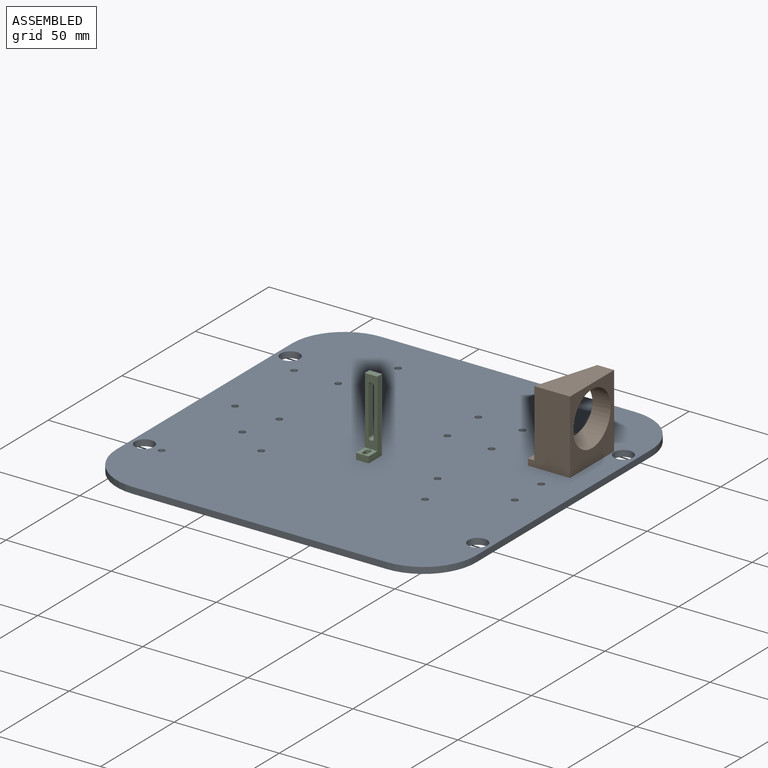
[diagram: assembled view]
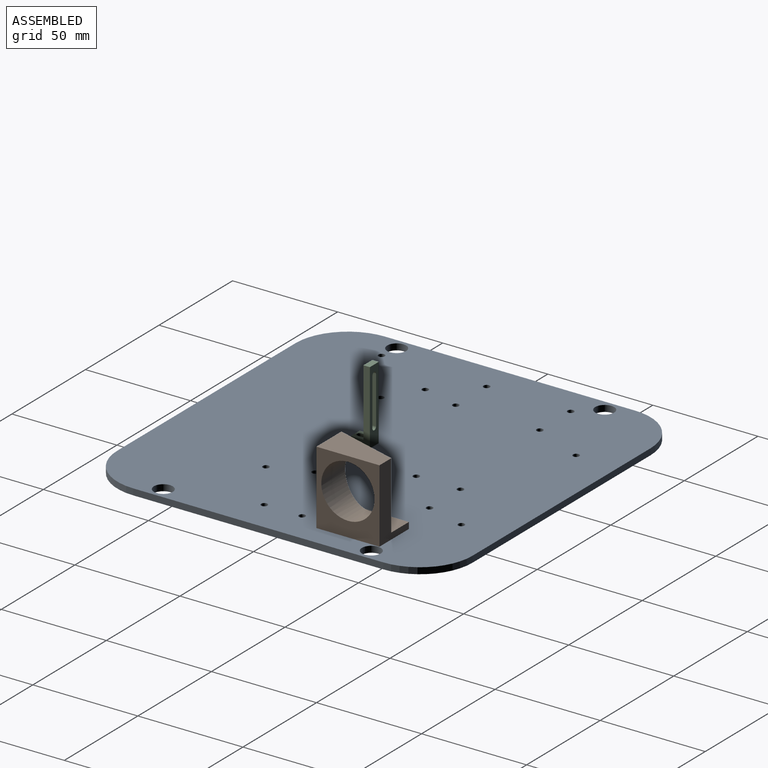
[diagram: assembled view, second angle]
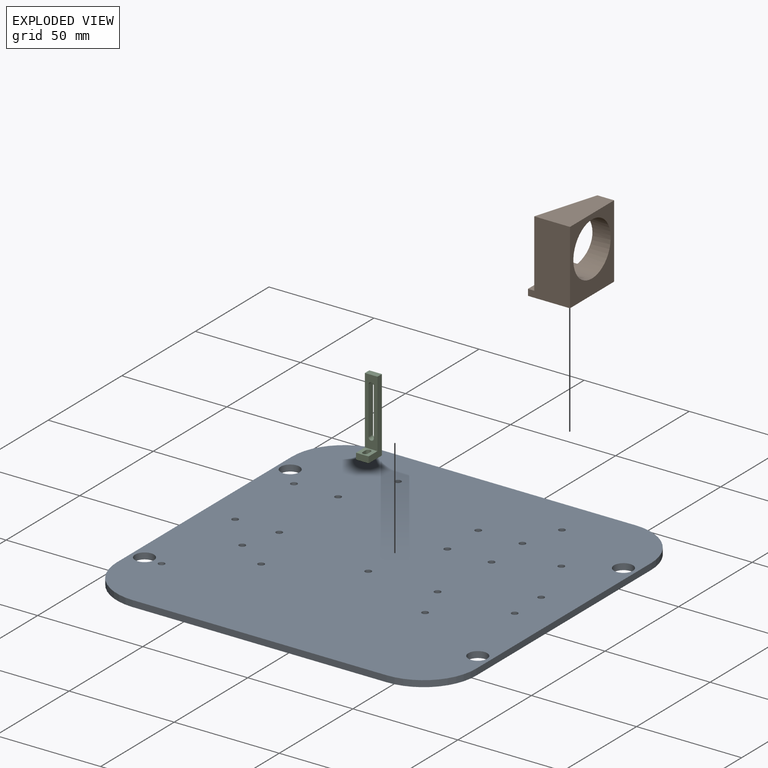
[diagram: exploded view]
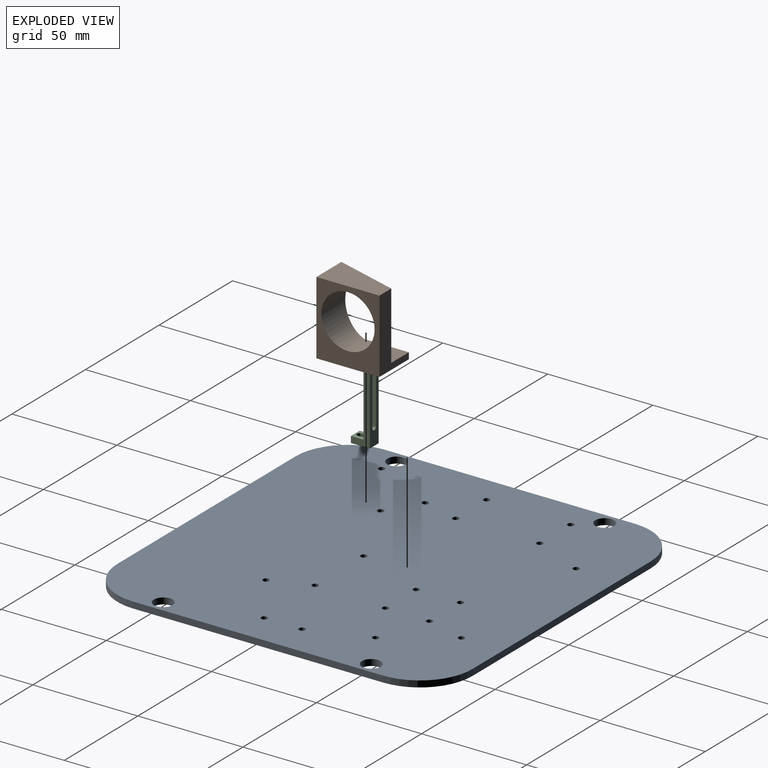
[diagram: exploded view, second angle]
ASSEMBLY  parts=3 mates=2
PART A: 33 faces, bbox 171x169x3 mm
  f0: plane 119x3mm, normal (1,0,0), area 357mm2, adj f8,f9,f29,f32
  f1: plane 121x3mm, normal (0,1,0), area 363mm2, adj f8,f9,f29,f30
  f2: plane 119x3mm, normal (-1,0,0), area 357mm2, adj f8,f9,f30,f31
  f3: cylinder r=4.5mm len=9mm, axis (0,0,-1), area 84.8mm2, adj f8,f9
  f4: cylinder r=4.5mm len=9mm, axis (0,0,-1), area 84.8mm2, adj f8,f9
  f5: cylinder r=4.5mm len=9mm, axis (0,0,-1), area 84.8mm2, adj f8,f9
  f6: plane 121x3mm, normal (0,-1,0), area 363mm2, adj f8,f9,f31,f32
  f7: cylinder r=4.5mm len=9mm, axis (0,0,-1), area 84.8mm2, adj f8,f9
  f8: plane 171x169mm, normal (0,0,1), area 27973.7mm2, adj f0,f1,f2,f3,f4,f5,f6,f7
  f9: plane 171x169mm, normal (0,0,-1), area 27973.7mm2, adj f0,f1,f2,f3,f4,f5,f6,f7
  f10: cylinder r=1.5mm len=3mm, axis (0,0,1), area 28.3mm2, adj f8,f9
  f11: cylinder r=1.5mm len=3mm, axis (0,0,1), area 28.3mm2, adj f8,f9
  f12: cylinder r=1.5mm len=3mm, axis (0,0,1), area 28.3mm2, adj f8,f9
  f13: cylinder r=1.5mm len=3mm, axis (0,0,1), area 28.3mm2, adj f8,f9
  f14: cylinder r=1.5mm len=3mm, axis (0,0,1), area 28.3mm2, adj f8,f9
  f15: cylinder r=1.5mm len=3mm, axis (0,0,1), area 28.3mm2, adj f8,f9
  f16: cylinder r=1.5mm len=3mm, axis (0,0,1), area 28.3mm2, adj f8,f9
  f17: cylinder r=1.5mm len=3mm, axis (0,0,1), area 28.3mm2, adj f8,f9
  f18: cylinder r=1.5mm len=3mm, axis (0,0,1), area 28.3mm2, adj f8,f9
  f19: cylinder r=1.5mm len=3mm, axis (0,0,1), area 28.3mm2, adj f8,f9
  f20: cylinder r=1.5mm len=3mm, axis (0,0,1), area 28.3mm2, adj f8,f9
  f21: cylinder r=1.5mm len=3mm, axis (0,0,1), area 28.3mm2, adj f8,f9
  f22: cylinder r=1.5mm len=3mm, axis (0,0,1), area 28.3mm2, adj f8,f9
  f23: cylinder r=1.5mm len=3mm, axis (0,0,1), area 28.3mm2, adj f8,f9
  f24: cylinder r=1.5mm len=3mm, axis (0,0,1), area 28.3mm2, adj f8,f9
  f25: cylinder r=1.5mm len=3mm, axis (0,0,1), area 28.3mm2, adj f8,f9
  f26: cylinder r=1.5mm len=3mm, axis (0,0,1), area 28.3mm2, adj f8,f9
  f27: cylinder r=1.5mm len=3mm, axis (0,0,1), area 28.3mm2, adj f8,f9
  f28: cylinder r=1.5mm len=3mm, axis (0,0,1), area 28.3mm2, adj f8,f9
  f29: cylinder r=25mm len=25mm, axis (0,0,1), area 117.8mm2, adj f0,f1,f8,f9
  f30: cylinder r=25mm len=25mm, axis (0,0,-1), area 117.8mm2, adj f1,f2,f8,f9
  f31: cylinder r=25mm len=25mm, axis (0,0,1), area 117.8mm2, adj f2,f6,f8,f9
  f32: cylinder r=25mm len=25mm, axis (0,0,-1), area 117.8mm2, adj f0,f6,f8,f9
PART B: 10 faces, bbox 31.6x21.6x36.6 mm
  f0: plane 30x3mm, normal (0,-1,0), area 90mm2, adj f1,f3,f5,f8
  f1: plane 35x20mm, normal (1,0,0), area 604mm2, adj f0,f2,f4,f5,f7,f8
  f2: plane 35x30mm, normal (0,1,0), area 543.3mm2, adj f1,f3,f4,f5,f6
  f3: plane 35x20mm, normal (-1,0,0), area 316mm2, adj f0,f2,f4,f5,f7,f8
  f4: plane 30x17mm, normal (0,0,1), area 375mm2, adj f1,f2,f3,f7
  f5: plane 30x20mm, normal (0,0,-1), area 592.9mm2, adj f0,f1,f2,f3,f9
  f6: cylinder r=12.7mm len=25.4mm, axis (0,-1,0), area 987.1mm2, adj f2,f7
  f7: plane 33.6x31.6mm, normal (-0.29,-0.96,0), area 473.3mm2, adj f1,f3,f4,f6,f8
  f8: plane 30x12mm, normal (0,0,1), area 217.9mm2, adj f0,f1,f3,f7,f9
  f9: cylinder r=1.5mm len=3mm, axis (0,0,1), area 28.3mm2, adj f5,f8
PART C: 16 faces, bbox 6x9x35 mm
  f0: plane 32x6mm, normal (0,-1,0), area 130.7mm2, adj f5,f6,f9,f11,f12,f13,f14,f15
  f1: plane 35x6mm, normal (0,1,0), area 148.7mm2, adj f5,f6,f10,f11,f12,f13,f14,f15
  f2: cylinder r=1.25mm len=3mm, axis (0,0,-1), area 11.8mm2, adj f3,f8,f9,f10
  f3: plane 3x2mm, normal (1,0,0), area 6mm2, adj f2,f4,f9,f10
  f4: cylinder r=1.25mm len=3mm, axis (0,0,-1), area 11.8mm2, adj f3,f8,f9,f10
  f5: plane 35x9mm, normal (1,0,0), area 123mm2, adj f0,f1,f7,f9,f10,f11
  f6: plane 35x9mm, normal (-1,0,0), area 123mm2, adj f0,f1,f7,f9,f10,f11
  f7: plane 6x3mm, normal (0,-1,0), area 18mm2, adj f5,f6,f9,f10
  f8: plane 3x2mm, normal (-1,0,0), area 6mm2, adj f2,f4,f9,f10
  f9: plane 6x6mm, normal (0,0,1), area 26.1mm2, adj f0,f2,f3,f4,f5,f6,f7,f8
  f10: plane 9x6mm, normal (0,0,-1), area 44.1mm2, adj f1,f2,f3,f4,f5,f6,f7,f8
  f11: plane 6x3mm, normal (0,0,1), area 18mm2, adj f0,f1,f5,f6
  f12: plane 22.56x3mm, normal (-1,0,0), area 67.7mm2, adj f0,f1,f13,f15
  f13: cylinder r=1.25mm len=3mm, axis (0,-1,0), area 11.8mm2, adj f0,f1,f12,f14
  f14: plane 22.56x3mm, normal (1,0,0), area 67.7mm2, adj f0,f1,f13,f15
  f15: cylinder r=1.25mm len=3mm, axis (0,-1,0), area 11.8mm2, adj f0,f1,f12,f14
PLACE A t=(-9.17,55.71,27.77)mm
PLACE B rot(axis=(0,0,-1),90deg) t=(55.33,90.71,30.77)mm
PLACE C t=(-9.67,46.21,30.77)mm
MATE revolute B.f9 <-> A.f13  axis (0,0,-1) through (49.33,92.71,30.77)mm
MATE fastened C.f4 <-> A.f16  axis (0,0,-1) through (-9.67,45.71,30.77)mm
